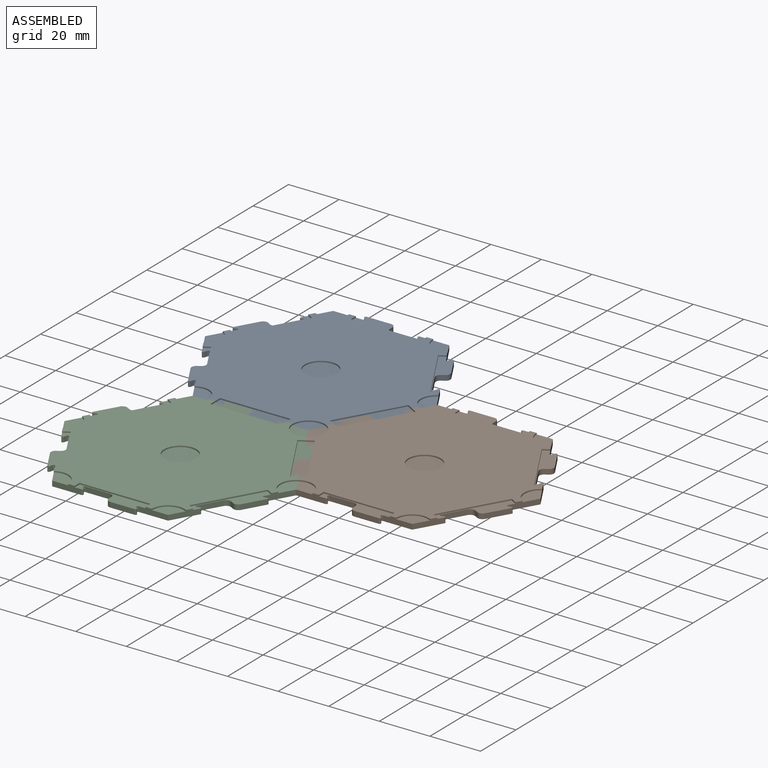
[diagram: assembled view]
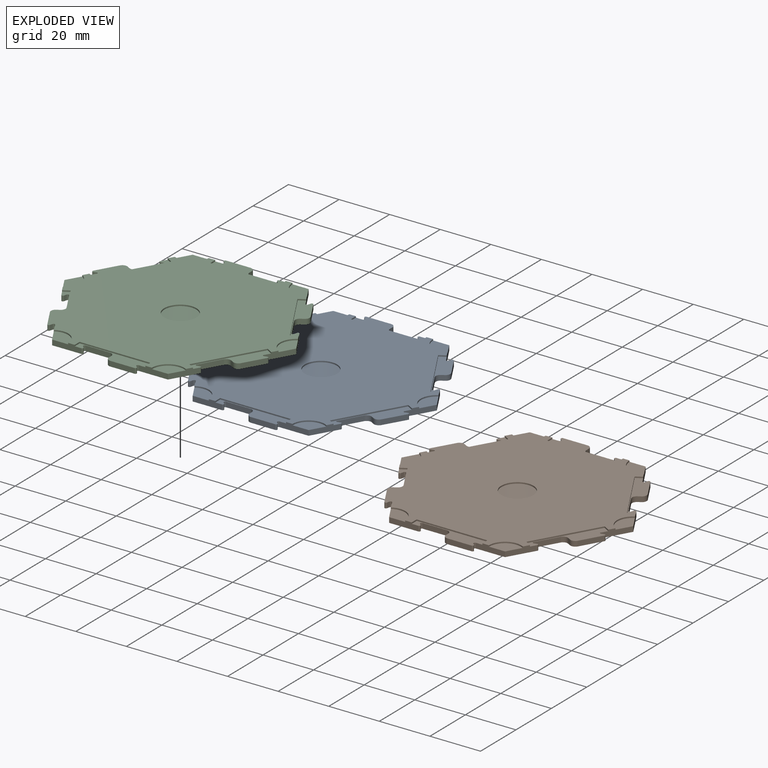
[diagram: exploded view]
GUIDED TOUR — MATED ASSEMBLY (Onshape document 58dd597e23460e0f6dbe6a99, AutoMate assembly 58dd597e23460e0f6dbe6a99_57a3c902e42efdde08ecc162_4225d79e06718582c4b6e365_default)

This assembly has 3 components, labeled P0..P2 below (a component is one placed occurrence of a part; the same part can appear more than once), held together by 4 mates. A mate is a constraint between two components; its type names the relative motion it leaves free:
  PLANAR — leaves sliding in the plane through the listed point (normal = the listed direction) and rotation about that normal free,
  SLIDER — leaves translation along the listed axis free.
Axis/direction vectors are unit vectors and 'through' points are millimeter coordinates, both in the assembly's world frame.

MATES
  1. PLANAR "Planar 1": P1 <-> P2, direction (0.000, 0.000, 1.000) through (45.84, -0.01, 0.51) mm
  2. PLANAR "Planar 2": P0 <-> P1, direction (0.000, 0.000, 1.000) through (-22.90, 39.68, 0.51) mm
  3. SLIDER "Slider 2": P1 <-> P0, axis (0.000, 0.000, 1.000) through (0.01, -0.01, 0.00) mm
  4. SLIDER "Slider 1": P2 <-> P0, axis (0.000, 0.000, 1.000) through (0.01, -0.01, 0.00) mm

ASSEMBLY ORDER
  1. P0 — the base component [order verified]
  2. P2 [order verified]
  3. P1 [order verified]
Order-tag legend:
  [order verified] — this step's position reverses a verified removal order: the component was checked to insert without passing through the ones already placed.

Of the 3 components, 3 carry the full construction recipe — the FeatureScript program that regenerates the part's solid from scratch; the rest are supplied as boundary geometry only.
Each toured component is shown spotlighted twice — in the assembled view, then in the exploded view, where a leader line traces a displaced component back to its assembled socket (saturated green if recipe-attached, orange if geometry-only; every other component desaturated gray) — followed by its recipe or geometry summary and the mates that hold it.
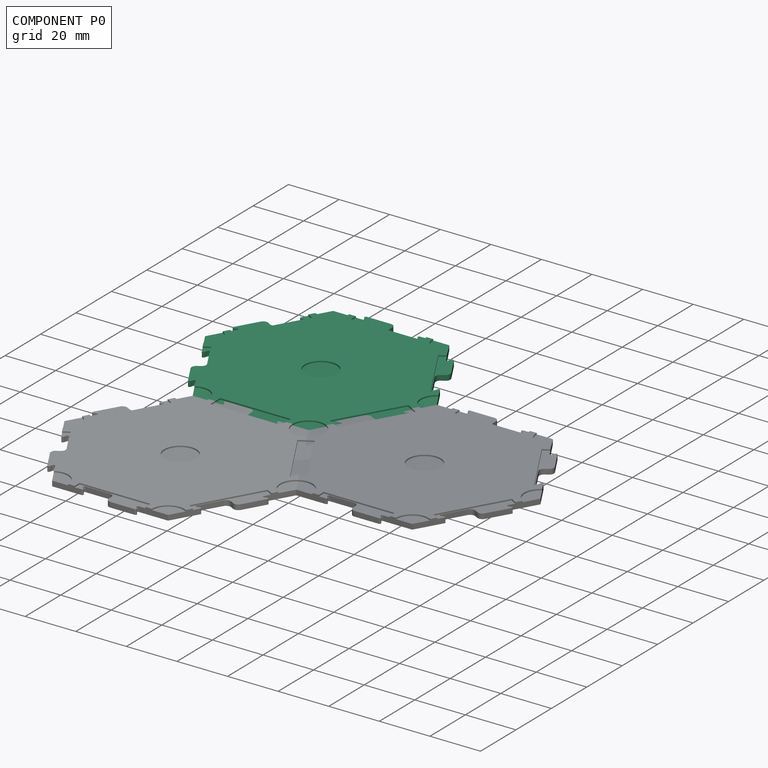
[diagram: component P0 — assembled]
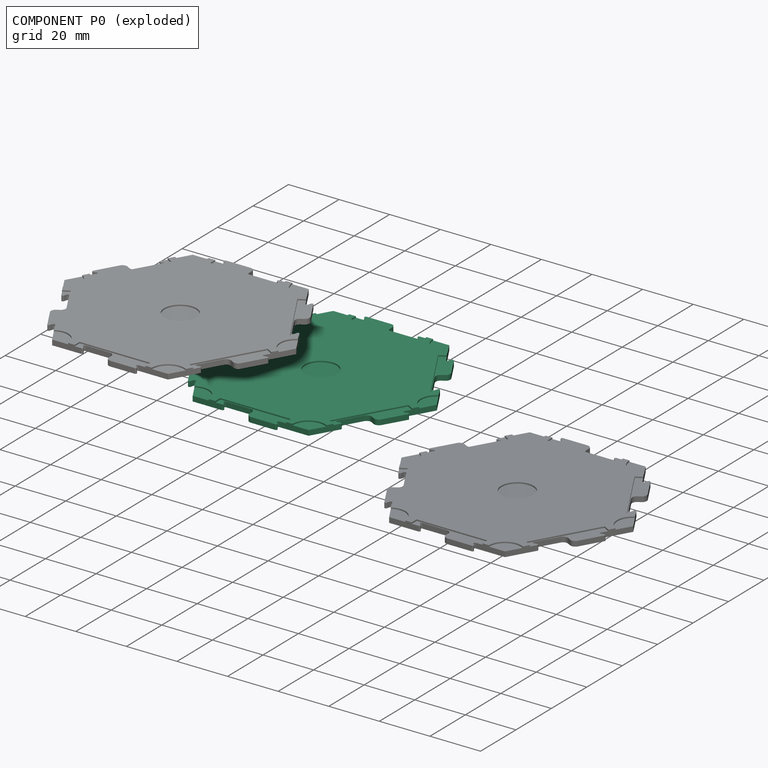
[diagram: component P0 — exploded]
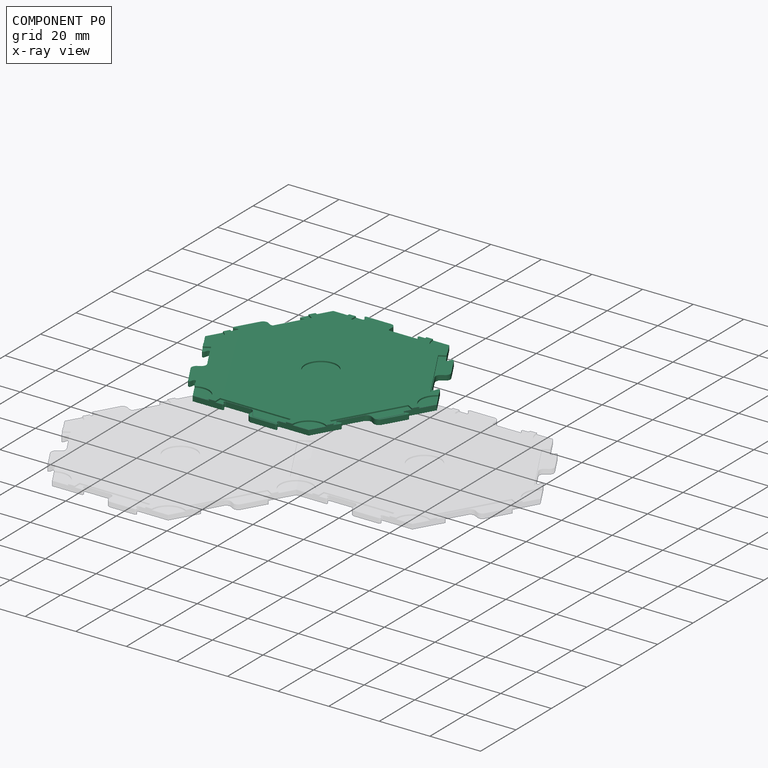
[diagram: component P0 — x-ray view]
COMPONENT P0 — recipe-attached (CADFS 00664621, mesh-verified: the recipe's output STEP matches this component's geometry to below the mesh-comparison resolution (tessellation chordal tolerance ~0.187 mm)).
Held by: PLANAR mate "Planar 2" to P1; SLIDER mate "Slider 2" to P1; SLIDER mate "Slider 1" to P2.
Construction recipe (FeatureScript — the CAD program that rebuilds this solid; sketch coordinates are in the units given by the * unit suffixes, e.g. mm):

FeatureScript 1511;
import(path : "onshape/std/geometry.fs", version : "1511.0");
import(path : "onshape/std/common.fs", version : "1511.0");
const mm = millimeter;
const VERTEX = EntityType.VERTEX;
const EDGE = EntityType.EDGE;
const FACE = EntityType.FACE;
const BODY = EntityType.BODY;
function v(x, y){return vector(x, y);}
function OD(order){return orderDisambiguation(order);}
function OSD(set){return originalSetDisambiguation(set);}
function TD(topology){return topologyDisambiguation(topology);}
function TDD(query){return trueDependencyDisambiguation(query);}
function sQuery(a, b, c) {return sketchEntityQuery(a, b, c);}

annotation { "Feature Type Name" : "Feature", "Feature Type Description" : "" }
export const myFeature = defineFeature(function(context is Context, id is Id, definition is map)
    precondition{}
    {
        {
            var Q0;
            Q0=qCreatedBy(makeId("Top.planeOp"),FACE);
            var sketch = newSketch(context, id + "F0", { "sketchPlane" : qUnion([Q0])});
            skCircle(sketch, "E0.cCircle", {"center": v(0, -26.46) * mm, "radius": 13.23 * mm, "construction": true});
            skLineSegment(sketch, "E0.0", {"start": v(22.91, -39.69) * mm, "end": v(-22.91, -39.69) * mm});
            skLineSegment(sketch, "E0.1", {"start": v(-22.91, -39.69) * mm, "end": v(0, 0) * mm});
            skLineSegment(sketch, "E0.2", {"start": v(0, 0) * mm, "end": v(22.91, -39.69) * mm});
            skPoint(sketch, "E0.0.midPoint", {"position": v(0, -39.69) * mm});
            skLineSegment(sketch, "E1", {"start": v(0, -39.69) * mm, "end": v(0, -40.32) * mm});
            skLineSegment(sketch, "E2", {"start": v(1.9, -42.23) * mm, "end": v(11.47, -42.23) * mm});
            skLineSegment(sketch, "E3", {"start": v(11.83, -41.36) * mm, "end": v(11.03, -40.55) * mm});
            skPoint(sketch, "E4.visualSharp", {"position": v(0, -42.23) * mm});
            skPoint(sketch, "E5.visualSharp", {"position": v(12.7, -42.23) * mm});
            skArc(sketch, "E5.filletArc", {"start": v(11.47, -42.23) * mm, "mid": v(11.94, -41.91) * mm, "end": v(11.83, -41.36) * mm});
            skLineSegment(sketch, "E6", {"start": v(11.39, -39.69) * mm, "end": v(22.91, -39.69) * mm});
            skArc(sketch, "E7.filletArc", {"start": v(11.39, -39.69) * mm, "mid": v(10.92, -40) * mm, "end": v(11.03, -40.55) * mm});
            skArc(sketch, "E8.filletArc", {"start": v(0, -40.32) * mm, "mid": v(0.56, -41.67) * mm, "end": v(1.9, -42.23) * mm});
            skLineSegment(sketch, "E9.1.0", {"start": v(-1.9, -37.15) * mm, "end": v(-11.47, -37.15) * mm});
            skArc(sketch, "E9.1.1", {"start": v(0, -39.05) * mm, "mid": v(-0.56, -37.7) * mm, "end": v(-1.9, -37.15) * mm});
            skLineSegment(sketch, "E9.1.2", {"start": v(0, -39.69) * mm, "end": v(0, -39.05) * mm});
            skLineSegment(sketch, "E9.1.3", {"start": v(-11.83, -38.01) * mm, "end": v(-11.03, -38.82) * mm});
            skArc(sketch, "E9.1.4", {"start": v(-11.39, -39.69) * mm, "mid": v(-10.92, -39.37) * mm, "end": v(-11.03, -38.82) * mm});
            skArc(sketch, "E9.1.5", {"start": v(-11.47, -37.15) * mm, "mid": v(-11.94, -37.46) * mm, "end": v(-11.83, -38.01) * mm});
            skSolve(sketch);
        }
        {
            var Q0;
            {var subQ0=sQuery(id+"F0.wireOp",EDGE,"E0.1");Q0=makeQuery(id+"F0.imprint","IMPRINT",FACE,{"disambiguationData":[TD([[makeQuery(id+"F0.imprint","IMPRINT",EDGE,{"derivedFrom":subQ0}),-1.0]])]});}
            var Q1;
            {var subQ0=sQuery(id+"F0.wireOp",EDGE,"97a6bddb-cc4e-44b6-bba3-12cff80ae4aa2.MirrorCS");Q1=makeQuery(id+"F0.imprint","IMPRINT",FACE,{"disambiguationData":[TD([[makeQuery(id+"F0.imprint","IMPRINT",EDGE,{"derivedFrom":subQ0}),-1.0]])]});}
            var Q2;
            {var subQ0=sQuery(id+"F0.wireOp",EDGE,"97a6bddb-cc4e-44b6-bba3-12cff80ae4aa1.MirrorCS");Q2=makeQuery(id+"F0.imprint","IMPRINT",FACE,{"disambiguationData":[TD([[makeQuery(id+"F0.imprint","IMPRINT",EDGE,{"derivedFrom":subQ0}),-1.0]])]});}
            var Q3;
            {var subQ0=sQuery(id+"F0.wireOp",EDGE,"97a6bddb-cc4e-44b6-bba3-12cff80ae4aa0.MirrorCS");Q3=makeQuery(id+"F0.imprint","IMPRINT",FACE,{"disambiguationData":[TD([[makeQuery(id+"F0.imprint","IMPRINT",EDGE,{"derivedFrom":subQ0}),-1.0]])]});}
            var Q4;
            {var subQ0=sQuery(id+"F0.wireOp",EDGE,"bf1687b6-3201-489e-a830-a7b10a865e700.MirrorCS");Q4=makeQuery(id+"F0.imprint","IMPRINT",FACE,{"disambiguationData":[TD([[makeQuery(id+"F0.imprint","IMPRINT",EDGE,{"derivedFrom":subQ0}),-1.0]])]});}
            var Q5;
            {var subQ0=sQuery(id+"F0.wireOp",EDGE,"e4fa4f41-507d-49eb-8017-fd13d7fb7afb0.MirrorCS");Q5=makeQuery(id+"F0.imprint","IMPRINT",FACE,{"disambiguationData":[TD([[makeQuery(id+"F0.imprint","IMPRINT",EDGE,{"derivedFrom":subQ0}),-1.0]])]});}
            var Q6;
            {var subQ0=sQuery(id+"F0.wireOp",EDGE,"ce523281-1682-42e5-b175-8e6fab38ec800.MirrorCS");Q6=makeQuery(id+"F0.imprint","IMPRINT",FACE,{"disambiguationData":[TD([[makeQuery(id+"F0.imprint","IMPRINT",EDGE,{"derivedFrom":subQ0}),-1.0]])]});}
            var Q7;
            {var subQ0=sQuery(id+"F0.wireOp",EDGE,"d5b8cde3-618e-44ad-8592-c6a08a5388a20.MirrorCS");Q7=makeQuery(id+"F0.imprint","IMPRINT",FACE,{"disambiguationData":[TD([[makeQuery(id+"F0.imprint","IMPRINT",EDGE,{"derivedFrom":subQ0}),-1.0]])]});}
            var Q8;
            {var subQ0=sQuery(id+"F0.wireOp",EDGE,"a88186e3-5a36-4d69-b793-0797718b3cf90.MirrorCS");Q8=makeQuery(id+"F0.imprint","IMPRINT",FACE,{"disambiguationData":[TD([[makeQuery(id+"F0.imprint","IMPRINT",EDGE,{"derivedFrom":subQ0}),-1.0]])]});}
            var Q9;
            {var subQ0=sQuery(id+"F0.wireOp",EDGE,"b8ba4a25-16ed-4d6a-869f-626e8081a0210.MirrorCS");Q9=makeQuery(id+"F0.imprint","IMPRINT",FACE,{"disambiguationData":[TD([[makeQuery(id+"F0.imprint","IMPRINT",EDGE,{"derivedFrom":subQ0}),-1.0]])]});}
            var Q10;
            {var subQ0=sQuery(id+"F0.wireOp",EDGE,"5b914c75-573c-406b-9c57-d630d5a647c60.MirrorCS");Q10=makeQuery(id+"F0.imprint","IMPRINT",FACE,{"disambiguationData":[TD([[makeQuery(id+"F0.imprint","IMPRINT",EDGE,{"derivedFrom":subQ0}),-1.0]])]});}
            var Q11;
            {var subQ0=sQuery(id+"F0.wireOp",EDGE,"7752e346-6ae3-4903-9fef-7c2ba14c38f10.MirrorCS");Q11=makeQuery(id+"F0.imprint","IMPRINT",FACE,{"disambiguationData":[TD([[makeQuery(id+"F0.imprint","IMPRINT",EDGE,{"derivedFrom":subQ0}),-1.0]])]});}
            var Q12;
            {var subQ0=sQuery(id+"F0.wireOp",EDGE,"67ecb135-220a-48f5-8a20-4e4477ede5310.MirrorCS");Q12=makeQuery(id+"F0.imprint","IMPRINT",FACE,{"disambiguationData":[TD([[makeQuery(id+"F0.imprint","IMPRINT",EDGE,{"derivedFrom":subQ0}),-1.0]])]});}
            var Q13;
            {var subQ0=sQuery(id+"F0.wireOp",EDGE,"chmzN1dF-lVPi-ufDX-51Gh-vAFPaPJtTRV7");Q13=makeQuery(id+"F0.imprint","IMPRINT",FACE,{"disambiguationData":[TD([[makeQuery(id+"F0.imprint","IMPRINT",EDGE,{"derivedFrom":subQ0}),-1.0]])]});}
            var Q14;
            {var subQ0=sQuery(id+"F0.wireOp",EDGE,"xmj2q76Y-8T0x-Uy3E-bdky-wkXMybDKTkoC");Q14=makeQuery(id+"F0.imprint","IMPRINT",FACE,{"disambiguationData":[TD([[makeQuery(id+"F0.imprint","IMPRINT",EDGE,{"derivedFrom":subQ0}),-1.0]])]});}
            var Q15;
            {var subQ0=sQuery(id+"F0.wireOp",EDGE,"hptf5S9C-4OT9-Tymd-WndI-nW2AmtLXeZ2Y");Q15=makeQuery(id+"F0.imprint","IMPRINT",FACE,{"disambiguationData":[TD([[makeQuery(id+"F0.imprint","IMPRINT",EDGE,{"derivedFrom":subQ0}),-1.0]])]});}
            var Q16;
            {var subQ0=sQuery(id+"F0.wireOp",EDGE,"E1");Q16=makeQuery(id+"F0.imprint","IMPRINT",FACE,{"disambiguationData":[TD([[makeQuery(id+"F0.imprint","IMPRINT",EDGE,{"derivedFrom":subQ0}),1.0]])]});}
            extrude(context, id + "F1", {"entities" : qUnion([Q0, Q1, Q2, Q3, Q4, Q5, Q6, Q7, Q8, Q9, Q10, Q11, Q12, Q13, Q14, Q15, Q16]), "depth" : 2.54 * mm, "offsetDistance" : 25.4 * mm});
        }
        {
            var Q0;
            Q0=makeQuery(id+"F1.opExtrude","SWEPT_BODY",BODY,{"disambiguationData":[OSD([sQuery(id+"F0.wireOp",EDGE,"E0.0"),sQuery(id+"F0.wireOp",EDGE,"E0.1"),sQuery(id+"F0.wireOp",EDGE,"E0.2"),sQuery(id+"F0.wireOp",EDGE,"Ihc1fdpb-C9ge-KW9p-kyAT-bs0RLZlIlIaE"),sQuery(id+"F0.wireOp",EDGE,"87ea3ed5-fdca-4bcd-8325-5824a1b2b9b6.1.0.0"),sQuery(id+"F0.wireOp",EDGE,"87ea3ed5-fdca-4bcd-8325-5824a1b2b9b6.2.0.0"),sQuery(id+"F0.wireOp",EDGE,"87ea3ed5-fdca-4bcd-8325-5824a1b2b9b6.3.0.0"),sQuery(id+"F0.wireOp",EDGE,"be1f27a8-b5cd-4a3d-9b83-b1ceea2719dc.1.0.0"),sQuery(id+"F0.wireOp",EDGE,"be1f27a8-b5cd-4a3d-9b83-b1ceea2719dc.2.0.0"),sQuery(id+"F0.wireOp",EDGE,"be1f27a8-b5cd-4a3d-9b83-b1ceea2719dc.3.0.0"),sQuery(id+"F0.wireOp",EDGE,"be1f27a8-b5cd-4a3d-9b83-b1ceea2719dc.4.0.0"),sQuery(id+"F0.wireOp",EDGE,"97a6bddb-cc4e-44b6-bba3-12cff80ae4aa0.MirrorCS"),sQuery(id+"F0.wireOp",EDGE,"97a6bddb-cc4e-44b6-bba3-12cff80ae4aa1.MirrorCS"),sQuery(id+"F0.wireOp",EDGE,"97a6bddb-cc4e-44b6-bba3-12cff80ae4aa2.MirrorCS"),sQuery(id+"F0.wireOp",EDGE,"bf1687b6-3201-489e-a830-a7b10a865e700.MirrorCS"),sQuery(id+"F0.wireOp",EDGE,"e4fa4f41-507d-49eb-8017-fd13d7fb7afb0.MirrorCS"),sQuery(id+"F0.wireOp",EDGE,"ce523281-1682-42e5-b175-8e6fab38ec800.MirrorCS"),sQuery(id+"F0.wireOp",EDGE,"d5b8cde3-618e-44ad-8592-c6a08a5388a20.MirrorCS"),sQuery(id+"F0.wireOp",EDGE,"a88186e3-5a36-4d69-b793-0797718b3cf90.MirrorCS")])]});
            var Q1;
            Q1=makeQuery(id+"F1.opExtrude","SWEPT_EDGE",EDGE,{"disambiguationData":[OSD([sQuery(id+"F0.wireOp",EDGE,"E0.1"),sQuery(id+"F0.wireOp",EDGE,"E0.2")])]});
            circularPattern(context, id + "F2", {"entities" : qUnion([Q0]), "axis" : qUnion([Q1]), "angle" : 360 * degree, "instanceCount" : 6, "equalSpace" : true});
        }
        {
            var Q0;
            Q0=makeQuery(id+"F1.opExtrude","SWEPT_BODY",BODY,{"disambiguationData":[OSD([sQuery(id+"F0.wireOp",EDGE,"E0.0"),sQuery(id+"F0.wireOp",EDGE,"E0.1"),sQuery(id+"F0.wireOp",EDGE,"E0.2"),sQuery(id+"F0.wireOp",EDGE,"Ihc1fdpb-C9ge-KW9p-kyAT-bs0RLZlIlIaE"),sQuery(id+"F0.wireOp",EDGE,"87ea3ed5-fdca-4bcd-8325-5824a1b2b9b6.1.0.0"),sQuery(id+"F0.wireOp",EDGE,"87ea3ed5-fdca-4bcd-8325-5824a1b2b9b6.2.0.0"),sQuery(id+"F0.wireOp",EDGE,"87ea3ed5-fdca-4bcd-8325-5824a1b2b9b6.3.0.0"),sQuery(id+"F0.wireOp",EDGE,"be1f27a8-b5cd-4a3d-9b83-b1ceea2719dc.1.0.0"),sQuery(id+"F0.wireOp",EDGE,"be1f27a8-b5cd-4a3d-9b83-b1ceea2719dc.2.0.0"),sQuery(id+"F0.wireOp",EDGE,"be1f27a8-b5cd-4a3d-9b83-b1ceea2719dc.3.0.0"),sQuery(id+"F0.wireOp",EDGE,"be1f27a8-b5cd-4a3d-9b83-b1ceea2719dc.4.0.0"),sQuery(id+"F0.wireOp",EDGE,"97a6bddb-cc4e-44b6-bba3-12cff80ae4aa0.MirrorCS"),sQuery(id+"F0.wireOp",EDGE,"97a6bddb-cc4e-44b6-bba3-12cff80ae4aa1.MirrorCS"),sQuery(id+"F0.wireOp",EDGE,"97a6bddb-cc4e-44b6-bba3-12cff80ae4aa2.MirrorCS"),sQuery(id+"F0.wireOp",EDGE,"bf1687b6-3201-489e-a830-a7b10a865e700.MirrorCS"),sQuery(id+"F0.wireOp",EDGE,"e4fa4f41-507d-49eb-8017-fd13d7fb7afb0.MirrorCS"),sQuery(id+"F0.wireOp",EDGE,"ce523281-1682-42e5-b175-8e6fab38ec800.MirrorCS"),sQuery(id+"F0.wireOp",EDGE,"d5b8cde3-618e-44ad-8592-c6a08a5388a20.MirrorCS"),sQuery(id+"F0.wireOp",EDGE,"a88186e3-5a36-4d69-b793-0797718b3cf90.MirrorCS")])]});
            var Q1;
            Q1=makeQuery(id+"F2.opPattern","COPY",BODY,{"derivedFrom":makeQuery(id+"F1.opExtrude","SWEPT_BODY",BODY,{"disambiguationData":[OSD([sQuery(id+"F0.wireOp",EDGE,"E0.0"),sQuery(id+"F0.wireOp",EDGE,"E0.1"),sQuery(id+"F0.wireOp",EDGE,"E0.2"),sQuery(id+"F0.wireOp",EDGE,"Ihc1fdpb-C9ge-KW9p-kyAT-bs0RLZlIlIaE"),sQuery(id+"F0.wireOp",EDGE,"87ea3ed5-fdca-4bcd-8325-5824a1b2b9b6.1.0.0"),sQuery(id+"F0.wireOp",EDGE,"87ea3ed5-fdca-4bcd-8325-5824a1b2b9b6.2.0.0"),sQuery(id+"F0.wireOp",EDGE,"87ea3ed5-fdca-4bcd-8325-5824a1b2b9b6.3.0.0"),sQuery(id+"F0.wireOp",EDGE,"be1f27a8-b5cd-4a3d-9b83-b1ceea2719dc.1.0.0"),sQuery(id+"F0.wireOp",EDGE,"be1f27a8-b5cd-4a3d-9b83-b1ceea2719dc.2.0.0"),sQuery(id+"F0.wireOp",EDGE,"be1f27a8-b5cd-4a3d-9b83-b1ceea2719dc.3.0.0"),sQuery(id+"F0.wireOp",EDGE,"be1f27a8-b5cd-4a3d-9b83-b1ceea2719dc.4.0.0"),sQuery(id+"F0.wireOp",EDGE,"97a6bddb-cc4e-44b6-bba3-12cff80ae4aa0.MirrorCS"),sQuery(id+"F0.wireOp",EDGE,"97a6bddb-cc4e-44b6-bba3-12cff80ae4aa1.MirrorCS"),sQuery(id+"F0.wireOp",EDGE,"97a6bddb-cc4e-44b6-bba3-12cff80ae4aa2.MirrorCS"),sQuery(id+"F0.wireOp",EDGE,"bf1687b6-3201-489e-a830-a7b10a865e700.MirrorCS"),sQuery(id+"F0.wireOp",EDGE,"e4fa4f41-507d-49eb-8017-fd13d7fb7afb0.MirrorCS"),sQuery(id+"F0.wireOp",EDGE,"ce523281-1682-42e5-b175-8e6fab38ec800.MirrorCS"),sQuery(id+"F0.wireOp",EDGE,"d5b8cde3-618e-44ad-8592-c6a08a5388a20.MirrorCS"),sQuery(id+"F0.wireOp",EDGE,"a88186e3-5a36-4d69-b793-0797718b3cf90.MirrorCS")])]}),"instanceName":"1"});
            var Q2;
            Q2=makeQuery(id+"F2.opPattern","COPY",BODY,{"derivedFrom":makeQuery(id+"F1.opExtrude","SWEPT_BODY",BODY,{"disambiguationData":[OSD([sQuery(id+"F0.wireOp",EDGE,"E0.0"),sQuery(id+"F0.wireOp",EDGE,"E0.1"),sQuery(id+"F0.wireOp",EDGE,"E0.2"),sQuery(id+"F0.wireOp",EDGE,"Ihc1fdpb-C9ge-KW9p-kyAT-bs0RLZlIlIaE"),sQuery(id+"F0.wireOp",EDGE,"87ea3ed5-fdca-4bcd-8325-5824a1b2b9b6.1.0.0"),sQuery(id+"F0.wireOp",EDGE,"87ea3ed5-fdca-4bcd-8325-5824a1b2b9b6.2.0.0"),sQuery(id+"F0.wireOp",EDGE,"87ea3ed5-fdca-4bcd-8325-5824a1b2b9b6.3.0.0"),sQuery(id+"F0.wireOp",EDGE,"be1f27a8-b5cd-4a3d-9b83-b1ceea2719dc.1.0.0"),sQuery(id+"F0.wireOp",EDGE,"be1f27a8-b5cd-4a3d-9b83-b1ceea2719dc.2.0.0"),sQuery(id+"F0.wireOp",EDGE,"be1f27a8-b5cd-4a3d-9b83-b1ceea2719dc.3.0.0"),sQuery(id+"F0.wireOp",EDGE,"be1f27a8-b5cd-4a3d-9b83-b1ceea2719dc.4.0.0"),sQuery(id+"F0.wireOp",EDGE,"97a6bddb-cc4e-44b6-bba3-12cff80ae4aa0.MirrorCS"),sQuery(id+"F0.wireOp",EDGE,"97a6bddb-cc4e-44b6-bba3-12cff80ae4aa1.MirrorCS"),sQuery(id+"F0.wireOp",EDGE,"97a6bddb-cc4e-44b6-bba3-12cff80ae4aa2.MirrorCS"),sQuery(id+"F0.wireOp",EDGE,"bf1687b6-3201-489e-a830-a7b10a865e700.MirrorCS"),sQuery(id+"F0.wireOp",EDGE,"e4fa4f41-507d-49eb-8017-fd13d7fb7afb0.MirrorCS"),sQuery(id+"F0.wireOp",EDGE,"ce523281-1682-42e5-b175-8e6fab38ec800.MirrorCS"),sQuery(id+"F0.wireOp",EDGE,"d5b8cde3-618e-44ad-8592-c6a08a5388a20.MirrorCS"),sQuery(id+"F0.wireOp",EDGE,"a88186e3-5a36-4d69-b793-0797718b3cf90.MirrorCS")])]}),"instanceName":"2"});
            var Q3;
            Q3=makeQuery(id+"F2.opPattern","COPY",BODY,{"derivedFrom":makeQuery(id+"F1.opExtrude","SWEPT_BODY",BODY,{"disambiguationData":[OSD([sQuery(id+"F0.wireOp",EDGE,"E0.0"),sQuery(id+"F0.wireOp",EDGE,"E0.1"),sQuery(id+"F0.wireOp",EDGE,"E0.2"),sQuery(id+"F0.wireOp",EDGE,"Ihc1fdpb-C9ge-KW9p-kyAT-bs0RLZlIlIaE"),sQuery(id+"F0.wireOp",EDGE,"87ea3ed5-fdca-4bcd-8325-5824a1b2b9b6.1.0.0"),sQuery(id+"F0.wireOp",EDGE,"87ea3ed5-fdca-4bcd-8325-5824a1b2b9b6.2.0.0"),sQuery(id+"F0.wireOp",EDGE,"87ea3ed5-fdca-4bcd-8325-5824a1b2b9b6.3.0.0"),sQuery(id+"F0.wireOp",EDGE,"be1f27a8-b5cd-4a3d-9b83-b1ceea2719dc.1.0.0"),sQuery(id+"F0.wireOp",EDGE,"be1f27a8-b5cd-4a3d-9b83-b1ceea2719dc.2.0.0"),sQuery(id+"F0.wireOp",EDGE,"be1f27a8-b5cd-4a3d-9b83-b1ceea2719dc.3.0.0"),sQuery(id+"F0.wireOp",EDGE,"be1f27a8-b5cd-4a3d-9b83-b1ceea2719dc.4.0.0"),sQuery(id+"F0.wireOp",EDGE,"97a6bddb-cc4e-44b6-bba3-12cff80ae4aa0.MirrorCS"),sQuery(id+"F0.wireOp",EDGE,"97a6bddb-cc4e-44b6-bba3-12cff80ae4aa1.MirrorCS"),sQuery(id+"F0.wireOp",EDGE,"97a6bddb-cc4e-44b6-bba3-12cff80ae4aa2.MirrorCS"),sQuery(id+"F0.wireOp",EDGE,"bf1687b6-3201-489e-a830-a7b10a865e700.MirrorCS"),sQuery(id+"F0.wireOp",EDGE,"e4fa4f41-507d-49eb-8017-fd13d7fb7afb0.MirrorCS"),sQuery(id+"F0.wireOp",EDGE,"ce523281-1682-42e5-b175-8e6fab38ec800.MirrorCS"),sQuery(id+"F0.wireOp",EDGE,"d5b8cde3-618e-44ad-8592-c6a08a5388a20.MirrorCS"),sQuery(id+"F0.wireOp",EDGE,"a88186e3-5a36-4d69-b793-0797718b3cf90.MirrorCS")])]}),"instanceName":"3"});
            var Q4;
            Q4=makeQuery(id+"F2.opPattern","COPY",BODY,{"derivedFrom":makeQuery(id+"F1.opExtrude","SWEPT_BODY",BODY,{"disambiguationData":[OSD([sQuery(id+"F0.wireOp",EDGE,"E0.0"),sQuery(id+"F0.wireOp",EDGE,"E0.1"),sQuery(id+"F0.wireOp",EDGE,"E0.2"),sQuery(id+"F0.wireOp",EDGE,"Ihc1fdpb-C9ge-KW9p-kyAT-bs0RLZlIlIaE"),sQuery(id+"F0.wireOp",EDGE,"87ea3ed5-fdca-4bcd-8325-5824a1b2b9b6.1.0.0"),sQuery(id+"F0.wireOp",EDGE,"87ea3ed5-fdca-4bcd-8325-5824a1b2b9b6.2.0.0"),sQuery(id+"F0.wireOp",EDGE,"87ea3ed5-fdca-4bcd-8325-5824a1b2b9b6.3.0.0"),sQuery(id+"F0.wireOp",EDGE,"be1f27a8-b5cd-4a3d-9b83-b1ceea2719dc.1.0.0"),sQuery(id+"F0.wireOp",EDGE,"be1f27a8-b5cd-4a3d-9b83-b1ceea2719dc.2.0.0"),sQuery(id+"F0.wireOp",EDGE,"be1f27a8-b5cd-4a3d-9b83-b1ceea2719dc.3.0.0"),sQuery(id+"F0.wireOp",EDGE,"be1f27a8-b5cd-4a3d-9b83-b1ceea2719dc.4.0.0"),sQuery(id+"F0.wireOp",EDGE,"97a6bddb-cc4e-44b6-bba3-12cff80ae4aa0.MirrorCS"),sQuery(id+"F0.wireOp",EDGE,"97a6bddb-cc4e-44b6-bba3-12cff80ae4aa1.MirrorCS"),sQuery(id+"F0.wireOp",EDGE,"97a6bddb-cc4e-44b6-bba3-12cff80ae4aa2.MirrorCS"),sQuery(id+"F0.wireOp",EDGE,"bf1687b6-3201-489e-a830-a7b10a865e700.MirrorCS"),sQuery(id+"F0.wireOp",EDGE,"e4fa4f41-507d-49eb-8017-fd13d7fb7afb0.MirrorCS"),sQuery(id+"F0.wireOp",EDGE,"ce523281-1682-42e5-b175-8e6fab38ec800.MirrorCS"),sQuery(id+"F0.wireOp",EDGE,"d5b8cde3-618e-44ad-8592-c6a08a5388a20.MirrorCS"),sQuery(id+"F0.wireOp",EDGE,"a88186e3-5a36-4d69-b793-0797718b3cf90.MirrorCS")])]}),"instanceName":"4"});
            var Q5;
            Q5=makeQuery(id+"F2.opPattern","COPY",BODY,{"derivedFrom":makeQuery(id+"F1.opExtrude","SWEPT_BODY",BODY,{"disambiguationData":[OSD([sQuery(id+"F0.wireOp",EDGE,"E0.0"),sQuery(id+"F0.wireOp",EDGE,"E0.1"),sQuery(id+"F0.wireOp",EDGE,"E0.2"),sQuery(id+"F0.wireOp",EDGE,"Ihc1fdpb-C9ge-KW9p-kyAT-bs0RLZlIlIaE"),sQuery(id+"F0.wireOp",EDGE,"87ea3ed5-fdca-4bcd-8325-5824a1b2b9b6.1.0.0"),sQuery(id+"F0.wireOp",EDGE,"87ea3ed5-fdca-4bcd-8325-5824a1b2b9b6.2.0.0"),sQuery(id+"F0.wireOp",EDGE,"87ea3ed5-fdca-4bcd-8325-5824a1b2b9b6.3.0.0"),sQuery(id+"F0.wireOp",EDGE,"be1f27a8-b5cd-4a3d-9b83-b1ceea2719dc.1.0.0"),sQuery(id+"F0.wireOp",EDGE,"be1f27a8-b5cd-4a3d-9b83-b1ceea2719dc.2.0.0"),sQuery(id+"F0.wireOp",EDGE,"be1f27a8-b5cd-4a3d-9b83-b1ceea2719dc.3.0.0"),sQuery(id+"F0.wireOp",EDGE,"be1f27a8-b5cd-4a3d-9b83-b1ceea2719dc.4.0.0"),sQuery(id+"F0.wireOp",EDGE,"97a6bddb-cc4e-44b6-bba3-12cff80ae4aa0.MirrorCS"),sQuery(id+"F0.wireOp",EDGE,"97a6bddb-cc4e-44b6-bba3-12cff80ae4aa1.MirrorCS"),sQuery(id+"F0.wireOp",EDGE,"97a6bddb-cc4e-44b6-bba3-12cff80ae4aa2.MirrorCS"),sQuery(id+"F0.wireOp",EDGE,"bf1687b6-3201-489e-a830-a7b10a865e700.MirrorCS"),sQuery(id+"F0.wireOp",EDGE,"e4fa4f41-507d-49eb-8017-fd13d7fb7afb0.MirrorCS"),sQuery(id+"F0.wireOp",EDGE,"ce523281-1682-42e5-b175-8e6fab38ec800.MirrorCS"),sQuery(id+"F0.wireOp",EDGE,"d5b8cde3-618e-44ad-8592-c6a08a5388a20.MirrorCS"),sQuery(id+"F0.wireOp",EDGE,"a88186e3-5a36-4d69-b793-0797718b3cf90.MirrorCS")])]}),"instanceName":"5"});
            booleanBodies(context, id + "F3", {"operationType" : BooleanOperationType.UNION, "tools" : qUnion([Q0, Q1, Q2, Q3, Q4, Q5])});
        }
        {
            var Q0;
            {var subQ0=makeQuery(id+"F1.opExtrude","CAP_FACE",FACE,{"disambiguationData":[OSD([sQuery(id+"F0.wireOp",EDGE,"E0.0"),sQuery(id+"F0.wireOp",EDGE,"E0.1"),sQuery(id+"F0.wireOp",EDGE,"E0.2"),sQuery(id+"F0.wireOp",EDGE,"E1"),sQuery(id+"F0.wireOp",EDGE,"E2"),sQuery(id+"F0.wireOp",EDGE,"E3"),sQuery(id+"F0.wireOp",EDGE,"E5.filletArc"),sQuery(id+"F0.wireOp",EDGE,"E6"),sQuery(id+"F0.wireOp",EDGE,"E7.filletArc"),sQuery(id+"F0.wireOp",EDGE,"E8.filletArc"),sQuery(id+"F0.wireOp",EDGE,"E9.1.0"),sQuery(id+"F0.wireOp",EDGE,"E9.1.1"),sQuery(id+"F0.wireOp",EDGE,"E9.1.2"),sQuery(id+"F0.wireOp",EDGE,"E9.1.3"),sQuery(id+"F0.wireOp",EDGE,"E9.1.4"),sQuery(id+"F0.wireOp",EDGE,"E9.1.5")])],"isStart":false});Q0=makeQuery(id+"F3.opBoolean","MERGE",FACE,{"derivedFrom":[subQ0,makeQuery(id+"F2.opPattern","COPY",FACE,{"derivedFrom":subQ0,"instanceName":"1"}),makeQuery(id+"F2.opPattern","COPY",FACE,{"derivedFrom":subQ0,"instanceName":"2"}),makeQuery(id+"F2.opPattern","COPY",FACE,{"derivedFrom":subQ0,"instanceName":"3"}),makeQuery(id+"F2.opPattern","COPY",FACE,{"derivedFrom":subQ0,"instanceName":"4"}),makeQuery(id+"F2.opPattern","COPY",FACE,{"derivedFrom":subQ0,"instanceName":"5"})]});}
            var sketch = newSketch(context, id + "F4", { "sketchPlane" : qUnion([Q0])});
            skLineSegment(sketch, "E10.bottom", {"start": v(-13.97, -36.9) * mm, "end": v(13.97, -36.9) * mm});
            skLineSegment(sketch, "E10.top", {"start": v(-13.97, -42.48) * mm, "end": v(13.97, -42.48) * mm});
            skLineSegment(sketch, "E10.left", {"start": v(-13.97, -36.9) * mm, "end": v(-13.97, -42.48) * mm});
            skLineSegment(sketch, "E10.right", {"start": v(13.97, -36.9) * mm, "end": v(13.97, -42.48) * mm});
            skCircle(sketch, "E11", {"center": v(0, 0) * mm, "radius": 6.35 * mm});
            skLineSegment(sketch, "E12.1.0", {"start": v(29.8, -33.34) * mm, "end": v(43.78, -9.14) * mm});
            skLineSegment(sketch, "E12.1.1", {"start": v(24.97, -30.55) * mm, "end": v(29.8, -33.34) * mm});
            skLineSegment(sketch, "E12.1.2", {"start": v(24.97, -30.55) * mm, "end": v(38.94, -6.35) * mm});
            skLineSegment(sketch, "E12.1.3", {"start": v(38.94, -6.35) * mm, "end": v(43.78, -9.14) * mm});
            skLineSegment(sketch, "E12.2.0", {"start": v(43.78, 9.14) * mm, "end": v(29.8, 33.34) * mm});
            skLineSegment(sketch, "E12.2.1", {"start": v(38.94, 6.35) * mm, "end": v(43.78, 9.14) * mm});
            skLineSegment(sketch, "E12.2.2", {"start": v(38.94, 6.35) * mm, "end": v(24.97, 30.55) * mm});
            skLineSegment(sketch, "E12.2.3", {"start": v(24.97, 30.55) * mm, "end": v(29.8, 33.34) * mm});
            skLineSegment(sketch, "E12.3.0", {"start": v(13.97, 42.48) * mm, "end": v(-13.97, 42.48) * mm});
            skLineSegment(sketch, "E12.3.1", {"start": v(13.97, 36.9) * mm, "end": v(13.97, 42.48) * mm});
            skLineSegment(sketch, "E12.3.2", {"start": v(13.97, 36.9) * mm, "end": v(-13.97, 36.9) * mm});
            skLineSegment(sketch, "E12.3.3", {"start": v(-13.97, 36.9) * mm, "end": v(-13.97, 42.48) * mm});
            skLineSegment(sketch, "E12.4.0", {"start": v(-29.8, 33.34) * mm, "end": v(-43.78, 9.14) * mm});
            skLineSegment(sketch, "E12.4.1", {"start": v(-24.97, 30.55) * mm, "end": v(-29.8, 33.34) * mm});
            skLineSegment(sketch, "E12.4.2", {"start": v(-24.97, 30.55) * mm, "end": v(-38.94, 6.35) * mm});
            skLineSegment(sketch, "E12.4.3", {"start": v(-38.94, 6.35) * mm, "end": v(-43.78, 9.14) * mm});
            skLineSegment(sketch, "E12.5.0", {"start": v(-43.78, -9.14) * mm, "end": v(-29.8, -33.34) * mm});
            skLineSegment(sketch, "E12.5.1", {"start": v(-38.94, -6.35) * mm, "end": v(-43.78, -9.14) * mm});
            skLineSegment(sketch, "E12.5.2", {"start": v(-38.94, -6.35) * mm, "end": v(-24.97, -30.55) * mm});
            skLineSegment(sketch, "E12.5.3", {"start": v(-24.97, -30.55) * mm, "end": v(-29.8, -33.34) * mm});
            skCircle(sketch, "E13", {"center": v(22.91, -39.69) * mm, "radius": 6.35 * mm});
            skCircle(sketch, "E14.1.0", {"center": v(45.83, 0) * mm, "radius": 6.35 * mm});
            skCircle(sketch, "E14.2.0", {"center": v(22.91, 39.69) * mm, "radius": 6.35 * mm});
            skCircle(sketch, "E14.3.0", {"center": v(-22.91, 39.69) * mm, "radius": 6.35 * mm});
            skCircle(sketch, "E14.4.0", {"center": v(-45.83, 0) * mm, "radius": 6.35 * mm});
            skCircle(sketch, "E14.5.0", {"center": v(-22.91, -39.69) * mm, "radius": 6.35 * mm});
            skSolve(sketch);
        }
        {
            var Q0;
            Q0=makeQuery(id+"F4.imprint","IMPRINT",FACE,{"disambiguationData":[TD([[makeQuery(id+"F4.imprint","IMPRINT",EDGE,{"derivedFrom":sQuery(id+"F4.wireOp",EDGE,"E11")}),1.0]])]});
            var Q1;
            Q1=makeQuery(id+"F4.imprint","IMPRINT",FACE,{"disambiguationData":[TD([[makeQuery(id+"F4.imprint","IMPRINT",EDGE,{"derivedFrom":makeQuery(id+"F1.opExtrude","CAP_EDGE",EDGE,{"disambiguationData":[OSD([sQuery(id+"F0.wireOp",EDGE,"E3")])],"isStart":false})}),1.0]])]});
            var Q2;
            Q2=makeQuery(id+"F4.imprint","IMPRINT",FACE,{"disambiguationData":[TD([[makeQuery(id+"F4.imprint","IMPRINT",EDGE,{"derivedFrom":makeQuery(id+"F1.opExtrude","CAP_EDGE",EDGE,{"disambiguationData":[OSD([sQuery(id+"F0.wireOp",EDGE,"E9.1.3")])],"isStart":false})}),-1.0]])]});
            var Q3;
            Q3=makeQuery(id+"F4.imprint","IMPRINT",FACE,{"disambiguationData":[TD([[makeQuery(id+"F4.imprint","IMPRINT",EDGE,{"derivedFrom":makeQuery(id+"F2.opPattern","COPY",EDGE,{"derivedFrom":makeQuery(id+"F1.opExtrude","CAP_EDGE",EDGE,{"disambiguationData":[OSD([sQuery(id+"F0.wireOp",EDGE,"E9.1.3")])],"isStart":false}),"instanceName":"5"})}),-1.0]])]});
            var Q4;
            Q4=makeQuery(id+"F4.imprint","IMPRINT",FACE,{"disambiguationData":[TD([[makeQuery(id+"F4.imprint","IMPRINT",EDGE,{"derivedFrom":makeQuery(id+"F2.opPattern","COPY",EDGE,{"derivedFrom":makeQuery(id+"F1.opExtrude","CAP_EDGE",EDGE,{"disambiguationData":[OSD([sQuery(id+"F0.wireOp",EDGE,"E3")])],"isStart":false}),"instanceName":"5"})}),1.0]])]});
            var Q5;
            Q5=makeQuery(id+"F4.imprint","IMPRINT",FACE,{"disambiguationData":[TD([[makeQuery(id+"F4.imprint","IMPRINT",EDGE,{"derivedFrom":makeQuery(id+"F2.opPattern","COPY",EDGE,{"derivedFrom":makeQuery(id+"F1.opExtrude","CAP_EDGE",EDGE,{"disambiguationData":[OSD([sQuery(id+"F0.wireOp",EDGE,"E9.1.3")])],"isStart":false}),"instanceName":"4"})}),-1.0]])]});
            var Q6;
            Q6=makeQuery(id+"F4.imprint","IMPRINT",FACE,{"disambiguationData":[TD([[makeQuery(id+"F4.imprint","IMPRINT",EDGE,{"derivedFrom":makeQuery(id+"F2.opPattern","COPY",EDGE,{"derivedFrom":makeQuery(id+"F1.opExtrude","CAP_EDGE",EDGE,{"disambiguationData":[OSD([sQuery(id+"F0.wireOp",EDGE,"E3")])],"isStart":false}),"instanceName":"4"})}),1.0]])]});
            var Q7;
            Q7=makeQuery(id+"F4.imprint","IMPRINT",FACE,{"disambiguationData":[TD([[makeQuery(id+"F4.imprint","IMPRINT",EDGE,{"derivedFrom":makeQuery(id+"F2.opPattern","COPY",EDGE,{"derivedFrom":makeQuery(id+"F1.opExtrude","CAP_EDGE",EDGE,{"disambiguationData":[OSD([sQuery(id+"F0.wireOp",EDGE,"E9.1.3")])],"isStart":false}),"instanceName":"3"})}),-1.0]])]});
            var Q8;
            Q8=makeQuery(id+"F4.imprint","IMPRINT",FACE,{"disambiguationData":[TD([[makeQuery(id+"F4.imprint","IMPRINT",EDGE,{"derivedFrom":makeQuery(id+"F2.opPattern","COPY",EDGE,{"derivedFrom":makeQuery(id+"F1.opExtrude","CAP_EDGE",EDGE,{"disambiguationData":[OSD([sQuery(id+"F0.wireOp",EDGE,"E3")])],"isStart":false}),"instanceName":"3"})}),1.0]])]});
            var Q9;
            Q9=makeQuery(id+"F4.imprint","IMPRINT",FACE,{"disambiguationData":[TD([[makeQuery(id+"F4.imprint","IMPRINT",EDGE,{"derivedFrom":makeQuery(id+"F2.opPattern","COPY",EDGE,{"derivedFrom":makeQuery(id+"F1.opExtrude","CAP_EDGE",EDGE,{"disambiguationData":[OSD([sQuery(id+"F0.wireOp",EDGE,"E9.1.3")])],"isStart":false}),"instanceName":"2"})}),-1.0]])]});
            var Q10;
            Q10=makeQuery(id+"F4.imprint","IMPRINT",FACE,{"disambiguationData":[TD([[makeQuery(id+"F4.imprint","IMPRINT",EDGE,{"derivedFrom":makeQuery(id+"F2.opPattern","COPY",EDGE,{"derivedFrom":makeQuery(id+"F1.opExtrude","CAP_EDGE",EDGE,{"disambiguationData":[OSD([sQuery(id+"F0.wireOp",EDGE,"E3")])],"isStart":false}),"instanceName":"2"})}),1.0]])]});
            var Q11;
            Q11=makeQuery(id+"F4.imprint","IMPRINT",FACE,{"disambiguationData":[TD([[makeQuery(id+"F4.imprint","IMPRINT",EDGE,{"derivedFrom":makeQuery(id+"F2.opPattern","COPY",EDGE,{"derivedFrom":makeQuery(id+"F1.opExtrude","CAP_EDGE",EDGE,{"disambiguationData":[OSD([sQuery(id+"F0.wireOp",EDGE,"E9.1.3")])],"isStart":false}),"instanceName":"1"})}),-1.0]])]});
            var Q12;
            Q12=makeQuery(id+"F4.imprint","IMPRINT",FACE,{"disambiguationData":[TD([[makeQuery(id+"F4.imprint","IMPRINT",EDGE,{"derivedFrom":makeQuery(id+"F2.opPattern","COPY",EDGE,{"derivedFrom":makeQuery(id+"F1.opExtrude","CAP_EDGE",EDGE,{"disambiguationData":[OSD([sQuery(id+"F0.wireOp",EDGE,"E3")])],"isStart":false}),"instanceName":"1"})}),1.0]])]});
            var Q13;
            {var subQ0=sQuery(id+"F4.wireOp",EDGE,"E14.5.0");var subQ1=makeQuery(id+"F1.opExtrude","CAP_EDGE",EDGE,{"disambiguationData":[OSD([sQuery(id+"F0.wireOp",EDGE,"E0.0")])],"isStart":false});var subQ2=makeQuery(id+"F4.imprint","INTERSECT",VERTEX,{"derivedFrom":[subQ1,subQ0]});Q13=makeQuery(id+"F4.imprint","IMPRINT",FACE,{"disambiguationData":[TD([[makeQuery(id+"F4.imprint","IMPRINT",EDGE,{"disambiguationData":[TD([[subQ2,-1.0]])],"derivedFrom":subQ0}),1.0]])]});}
            var Q14;
            {var subQ0=sQuery(id+"F4.wireOp",EDGE,"E13");var subQ1=makeQuery(id+"F1.opExtrude","CAP_EDGE",EDGE,{"disambiguationData":[OSD([sQuery(id+"F0.wireOp",EDGE,"E6")])],"isStart":false});var subQ2=makeQuery(id+"F4.imprint","INTERSECT",VERTEX,{"derivedFrom":[subQ1,subQ0]});Q14=makeQuery(id+"F4.imprint","IMPRINT",FACE,{"disambiguationData":[TD([[makeQuery(id+"F4.imprint","IMPRINT",EDGE,{"disambiguationData":[TD([[subQ2,1.0]])],"derivedFrom":subQ0}),1.0]])]});}
            var Q15;
            {var subQ0=sQuery(id+"F4.wireOp",EDGE,"E14.1.0");var subQ1=makeQuery(id+"F2.opPattern","COPY",EDGE,{"derivedFrom":makeQuery(id+"F1.opExtrude","CAP_EDGE",EDGE,{"disambiguationData":[OSD([sQuery(id+"F0.wireOp",EDGE,"E0.0")])],"isStart":false}),"instanceName":"4"});var subQ2=makeQuery(id+"F4.imprint","INTERSECT",VERTEX,{"derivedFrom":[subQ1,subQ0]});Q15=makeQuery(id+"F4.imprint","IMPRINT",FACE,{"disambiguationData":[TD([[makeQuery(id+"F4.imprint","IMPRINT",EDGE,{"disambiguationData":[TD([[subQ2,-1.0]])],"derivedFrom":subQ0}),1.0]])]});}
            var Q16;
            {var subQ0=sQuery(id+"F4.wireOp",EDGE,"E14.2.0");var subQ1=makeQuery(id+"F2.opPattern","COPY",EDGE,{"derivedFrom":makeQuery(id+"F1.opExtrude","CAP_EDGE",EDGE,{"disambiguationData":[OSD([sQuery(id+"F0.wireOp",EDGE,"E0.0")])],"isStart":false}),"instanceName":"3"});var subQ2=makeQuery(id+"F4.imprint","INTERSECT",VERTEX,{"derivedFrom":[subQ1,subQ0]});Q16=makeQuery(id+"F4.imprint","IMPRINT",FACE,{"disambiguationData":[TD([[makeQuery(id+"F4.imprint","IMPRINT",EDGE,{"disambiguationData":[TD([[subQ2,-1.0]])],"derivedFrom":subQ0}),1.0]])]});}
            var Q17;
            {var subQ0=sQuery(id+"F4.wireOp",EDGE,"E14.3.0");var subQ1=makeQuery(id+"F2.opPattern","COPY",EDGE,{"derivedFrom":makeQuery(id+"F1.opExtrude","CAP_EDGE",EDGE,{"disambiguationData":[OSD([sQuery(id+"F0.wireOp",EDGE,"E0.0")])],"isStart":false}),"instanceName":"2"});var subQ2=makeQuery(id+"F4.imprint","INTERSECT",VERTEX,{"derivedFrom":[subQ1,subQ0]});Q17=makeQuery(id+"F4.imprint","IMPRINT",FACE,{"disambiguationData":[TD([[makeQuery(id+"F4.imprint","IMPRINT",EDGE,{"disambiguationData":[TD([[subQ2,-1.0]])],"derivedFrom":subQ0}),1.0]])]});}
            var Q18;
            {var subQ0=sQuery(id+"F4.wireOp",EDGE,"E14.4.0");var subQ1=makeQuery(id+"F2.opPattern","COPY",EDGE,{"derivedFrom":makeQuery(id+"F1.opExtrude","CAP_EDGE",EDGE,{"disambiguationData":[OSD([sQuery(id+"F0.wireOp",EDGE,"E0.0")])],"isStart":false}),"instanceName":"1"});var subQ2=makeQuery(id+"F4.imprint","INTERSECT",VERTEX,{"derivedFrom":[subQ1,subQ0]});Q18=makeQuery(id+"F4.imprint","IMPRINT",FACE,{"disambiguationData":[TD([[makeQuery(id+"F4.imprint","IMPRINT",EDGE,{"disambiguationData":[TD([[subQ2,-1.0]])],"derivedFrom":subQ0}),1.0]])]});}
            extrude(context, id + "F5", {"entities" : qUnion([Q0, Q1, Q2, Q3, Q4, Q5, Q6, Q7, Q8, Q9, Q10, Q11, Q12, Q13, Q14, Q15, Q16, Q17, Q18]), "operationType" : NewBodyOperationType.REMOVE, "oppositeDirection" : true, "depth" : 0.5 * mm, "offsetDistance" : 25.4 * mm});
        }
    });
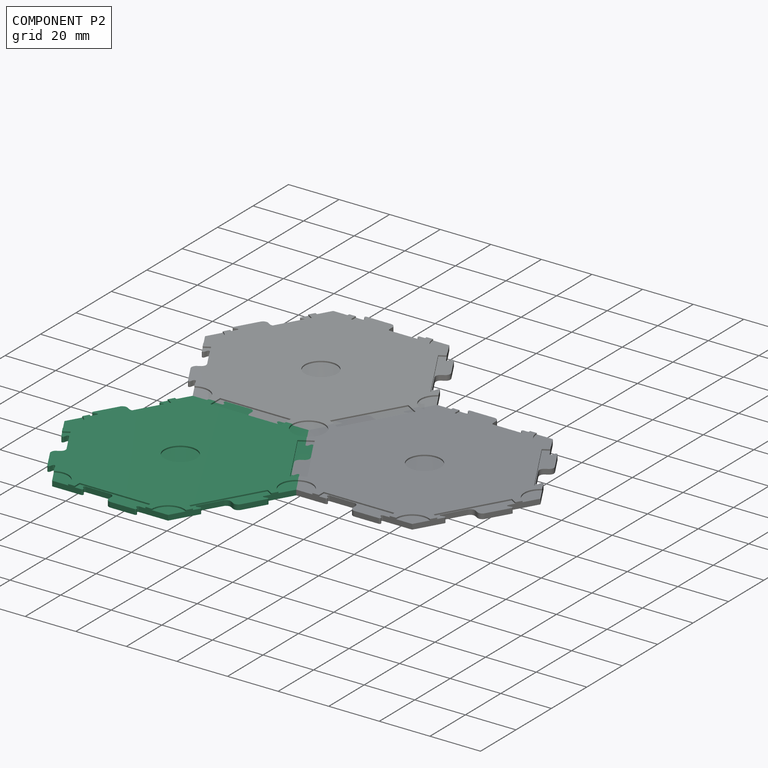
[diagram: component P2 — assembled]
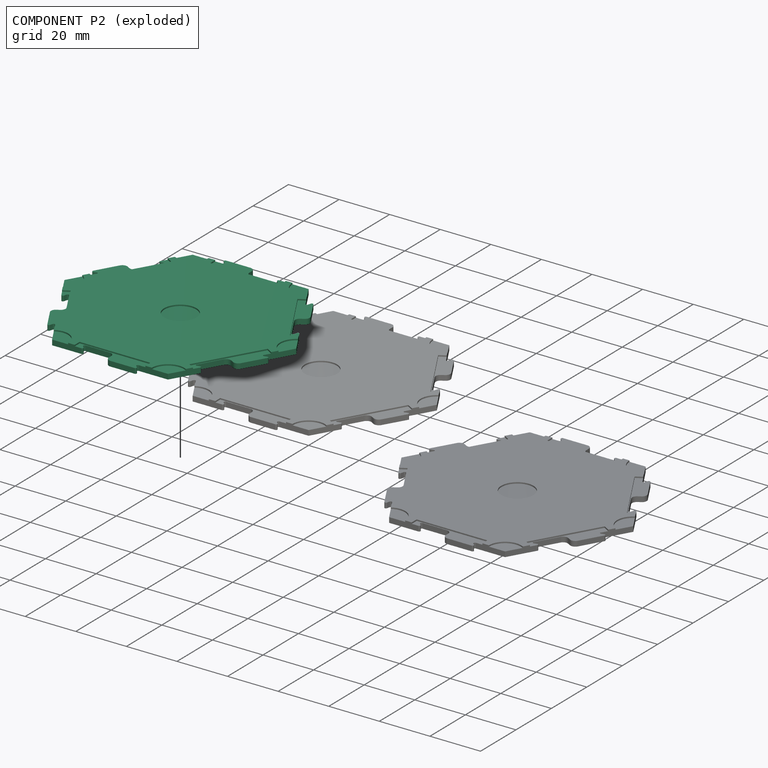
[diagram: component P2 — exploded]
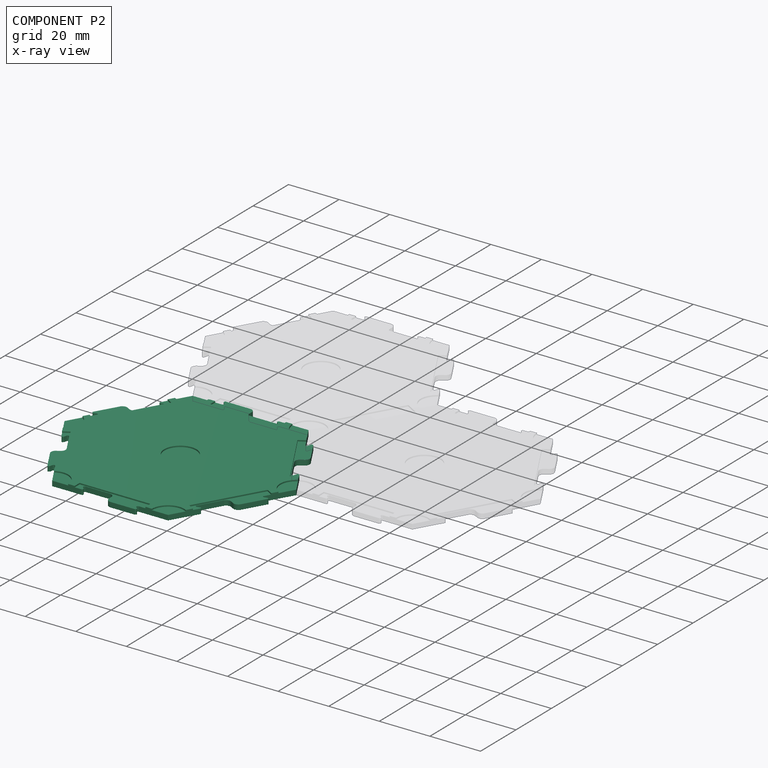
[diagram: component P2 — x-ray view]
COMPONENT P2 — same part as P0 (CADFS 00664621); its construction recipe is shown at P0.
Held by: PLANAR mate "Planar 1" to P1; SLIDER mate "Slider 1" to P0.
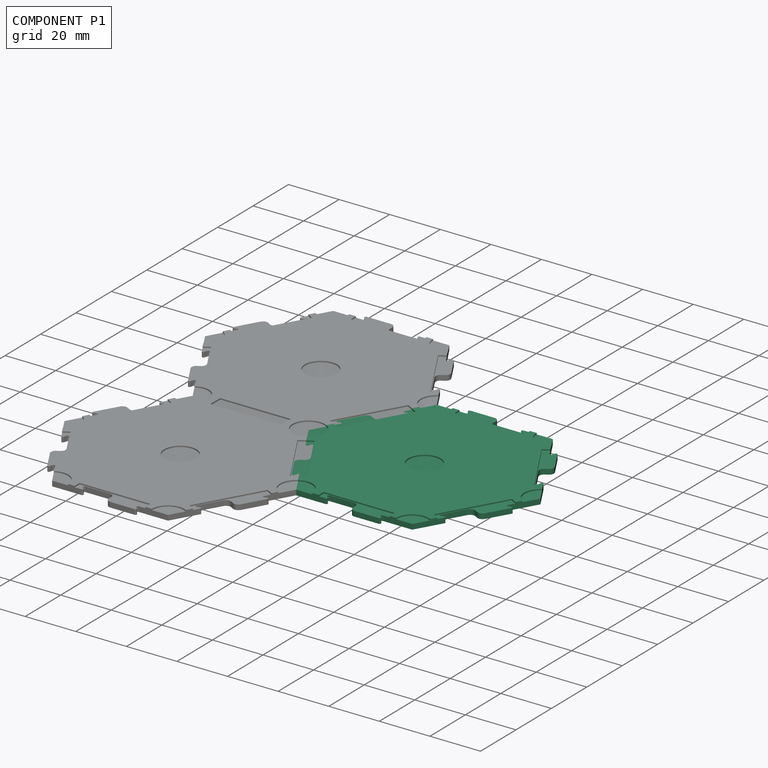
[diagram: component P1 — assembled]
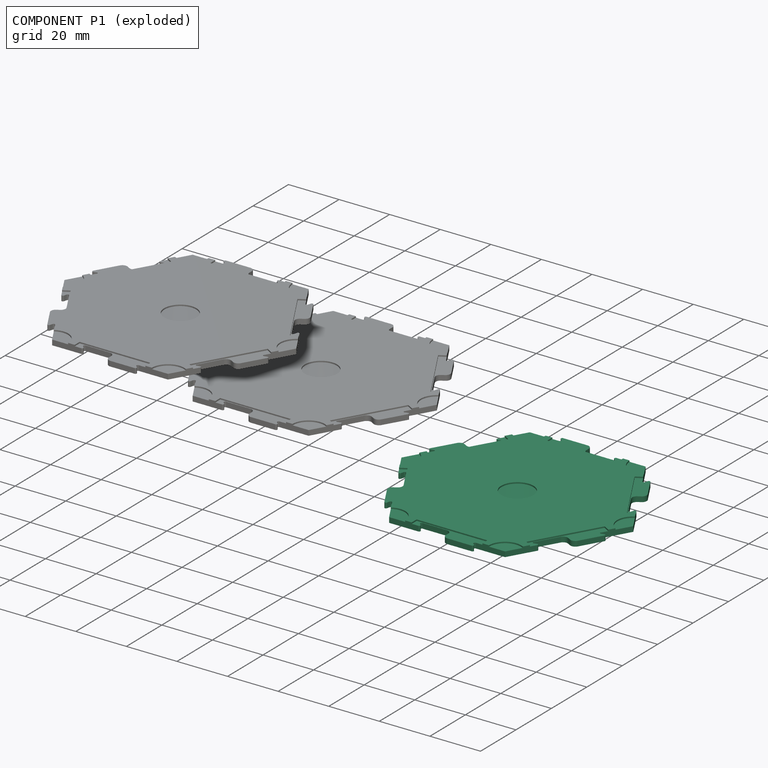
[diagram: component P1 — exploded]
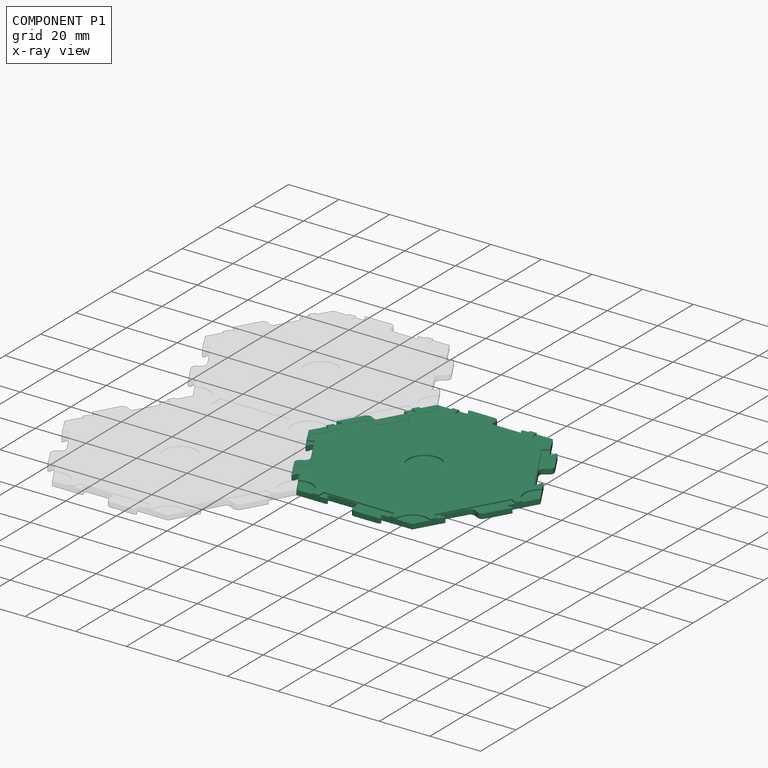
[diagram: component P1 — x-ray view]
COMPONENT P1 — same part as P0 (CADFS 00664621); its construction recipe is shown at P0.
Held by: PLANAR mate "Planar 1" to P2; PLANAR mate "Planar 2" to P0; SLIDER mate "Slider 2" to P0.
PROVENANCE & LICENSES
Assembly (occurrences, transforms, mates, per-part STEP geometry): AutoMate dataset, Zenodo record 7776208, CC0.
Construction recipes: CADFS (HuggingFace VladPyatov/CADFS, CC-BY-4.0, layered over the ABC dataset), FeatureScript reconstruction programs keyed by ABC model id.
Join: ABC meta listings map ABC model id -> Onshape documentId; within a shared document, parts are matched by geometric signature (bounding-box dims + volume at 0.1% relative tolerance, exact B-rep face/solid counts).
Verification: 3 of this assembly's 3 components carry a recipe attachment, and every attachment is mesh-verified: the CADFS STEP and the AutoMate member STEP were compared as meshes in their shared local frame (symmetric sampled-point-to-mesh distance); worst across the 3 attachments: below the mesh-comparison resolution (tessellation chordal tolerance ~0.187 mm) on a 125 mm part.
Renders: orthographic iso camera (az 35 / el 25); the floor grid conveys scale (grid pitch printed in each image; no ruler). In the exploded view each component is displaced by its stored offset vector: the offsets alone carry the explosion direction (mate normal/axis signs are not orientation cues and do not encode it), and separation distances are assigned per mate-chain, not proportionally to assembly-order depth.
